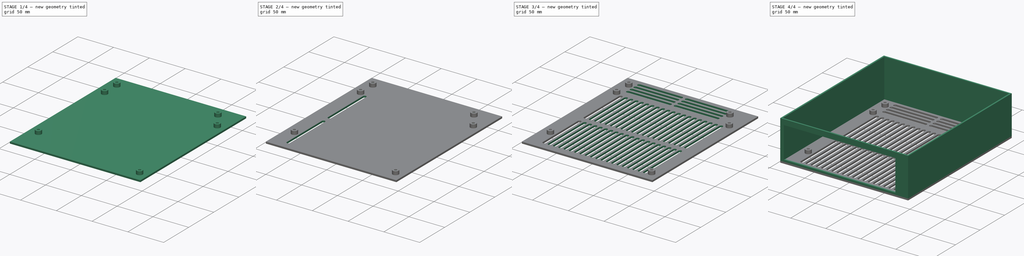
[diagram: build sequence overview — one tinted view per stage of 4, left to right]
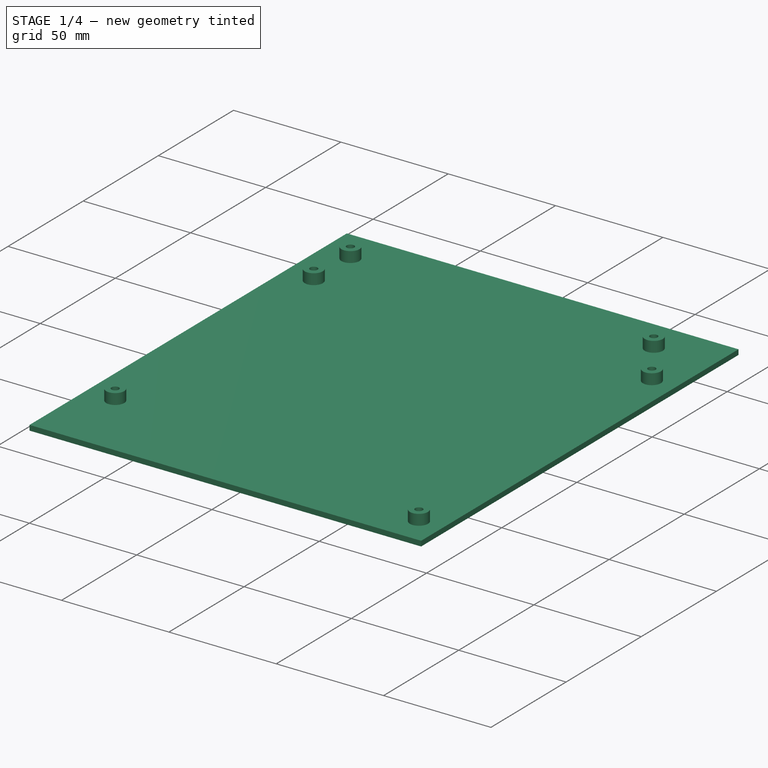
[diagram: stage 1 of 4 — iso view after this stage's code; geometry added in this stage tinted green]
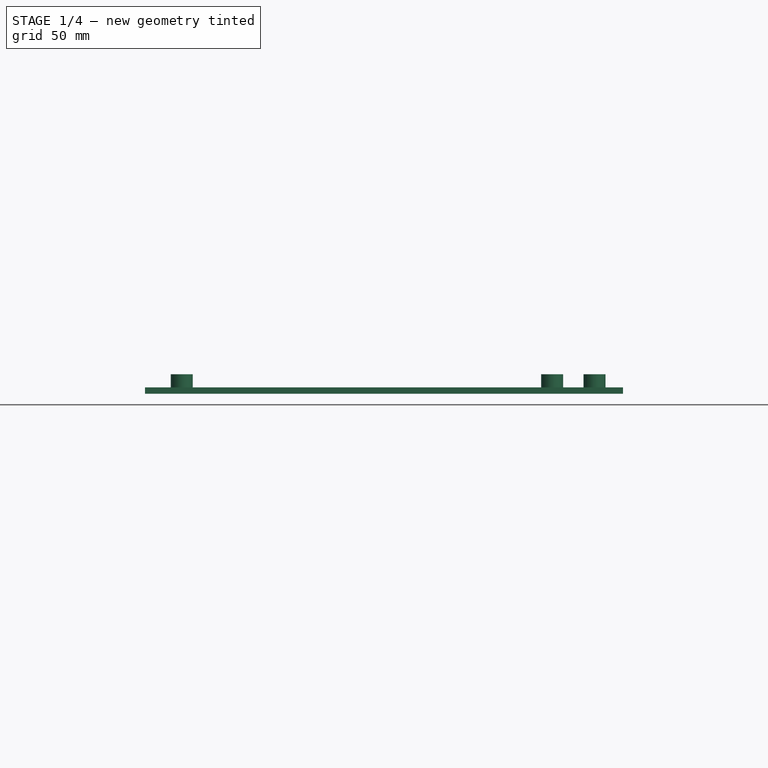
[diagram: stage 1 of 4 — front view after this stage's code; geometry added in this stage tinted green]
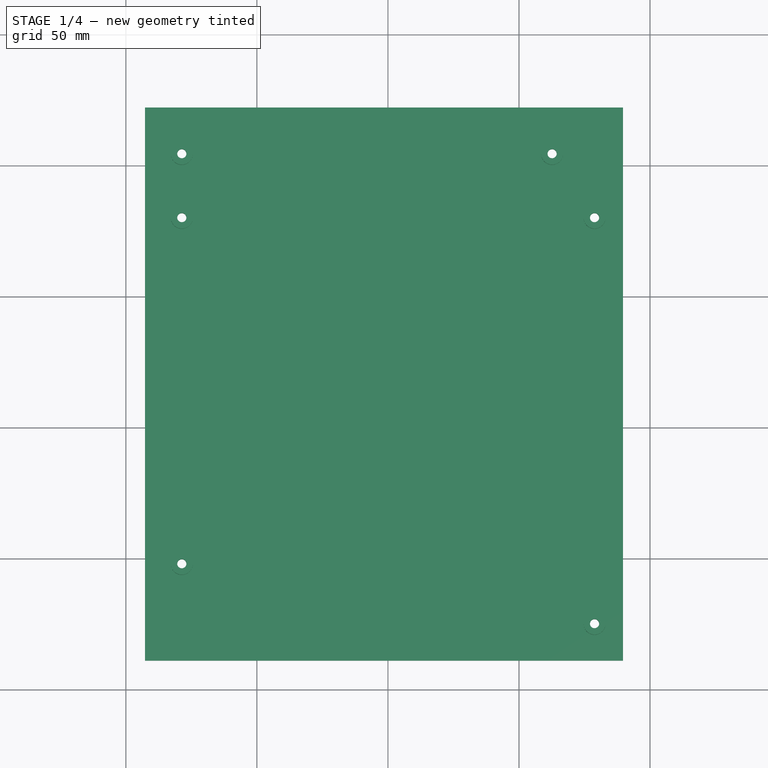
[diagram: stage 1 of 4 — top view after this stage's code; geometry added in this stage tinted green]
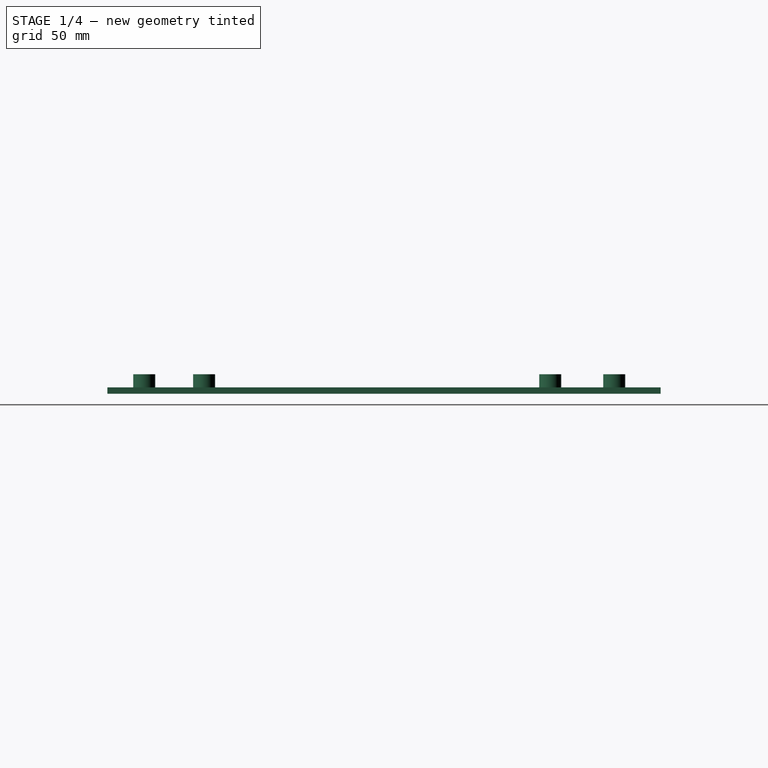
[diagram: stage 1 of 4 — right view after this stage's code; geometry added in this stage tinted green]
FCSTD DOCUMENT  (FreeCAD 0.18.3R)
Label: MiniItx_2
License: All rights reserved
LicenseURL: http://en.wikipedia.org/wiki/All_rights_reserved
objects: Sketcher::SketchObject×8, PartDesign::Pocket×4, PartDesign::Pad×3, PartDesign::LinearPattern×2, Spreadsheet::Sheet×1, PartDesign::Body×1, App::Part×1
note: 25 computed .brp shape members not serialized (recipe doc carries the construction recipe); baked Part::Feature solids carry a one-line shape summary decoded from their .brp

FEATURE [Sketcher::SketchObject] Sketch
  MapMode = 5
  Support = -> [XY_Plane001]
  expr: Constraints.ScrewRadius = Screws.M3Radius
  sketch-geometry (38):
    g0: LineSegment StartX=-85 StartY=85 StartZ=0 EndX=85 EndY=85 EndZ=0
    g1: LineSegment StartX=85 StartY=85 StartZ=0 EndX=85 EndY=-85 EndZ=0
    g2: LineSegment StartX=85 StartY=-85 StartZ=0 EndX=-85 EndY=-85 EndZ=0
    g3: LineSegment StartX=-85 StartY=-85 StartZ=0 EndX=-85 EndY=85 EndZ=0
    g4: LineSegment [constr] StartX=-85 StartY=0 StartZ=0 EndX=85 EndY=0 EndZ=0
    g5: LineSegment [constr] StartX=0 StartY=85 StartZ=0 EndX=0 EndY=-85 EndZ=0
    g6: LineSegment StartX=-78.65 StartY=80.1 StartZ=0 EndX=-78.65 EndY=-51.98 EndZ=0
    g7: Circle CenterX=-78.65 CenterY=80.1 CenterZ=0 NormalX=0 NormalY=0 NormalZ=1 AngleXU=0 Radius=1.75
    g8: Circle CenterX=-78.65 CenterY=-51.98 CenterZ=0 NormalX=0 NormalY=0 NormalZ=1 AngleXU=0 Radius=1.75
    g9: LineSegment StartX=78.83 StartY=80.1 StartZ=0 EndX=78.83 EndY=-74.84 EndZ=0
    g10: Circle CenterX=78.83 CenterY=-74.84 CenterZ=0 NormalX=0 NormalY=0 NormalZ=1 AngleXU=0 Radius=1.75
    g11: LineSegment StartX=-78.65 StartY=80.1 StartZ=0 EndX=78.83 EndY=80.1 EndZ=0
    g12: Circle CenterX=78.83 CenterY=80.1 CenterZ=0 NormalX=0 NormalY=0 NormalZ=1 AngleXU=0 Radius=1.75
    g13: LineSegment StartX=-92.7 StartY=122.2 StartZ=0 EndX=89.7 EndY=122.2 EndZ=0
    g14: LineSegment StartX=89.7 StartY=122.2 StartZ=0 EndX=89.7 EndY=-88.9 EndZ=0
    g15: LineSegment StartX=89.7 StartY=-88.9 StartZ=0 EndX=-92.7 EndY=-88.9 EndZ=0
    g16: LineSegment StartX=-92.7 StartY=-88.9 StartZ=0 EndX=-92.7 EndY=122.2 EndZ=0
    g17: LineSegment StartX=-85 StartY=-85 StartZ=0 EndX=-87.5 EndY=-85 EndZ=0
    g18: LineSegment StartX=-85 StartY=-86.7 StartZ=0 EndX=-85 EndY=-88.9 EndZ=0
    g19: LineSegment StartX=-85 StartY=117.5 StartZ=0 EndX=69 EndY=117.5 EndZ=0
    g20: LineSegment StartX=69 StartY=117.5 StartZ=0 EndX=69 EndY=87.5 EndZ=0
    g21: LineSegment StartX=69 StartY=87.5 StartZ=0 EndX=-85 EndY=87.5 EndZ=0
    g22: LineSegment StartX=-85 StartY=87.5 StartZ=0 EndX=-85 EndY=117.5 EndZ=0
    g23: LineSegment [constr] StartX=-85 StartY=104.5 StartZ=0 EndX=69 EndY=104.5 EndZ=0
    g24: LineSegment [constr] StartX=-8 StartY=117.5 StartZ=0 EndX=-8 EndY=87.5 EndZ=0
    g25: LineSegment [constr] StartX=-85 StartY=87.5 StartZ=0 EndX=-85 EndY=85 EndZ=0
    g26: LineSegment StartX=-85 StartY=117.5 StartZ=0 EndX=-85 EndY=120 EndZ=0
    g27: Circle CenterX=-78.65 CenterY=104.5 CenterZ=0 NormalX=0 NormalY=0 NormalZ=1 AngleXU=0 Radius=1.75
    g28: Circle CenterX=62.65 CenterY=104.5 CenterZ=0 NormalX=0 NormalY=0 NormalZ=1 AngleXU=0 Radius=1.75
    g29: GeomPoint X=0 Y=0 Z=0
    g30: LineSegment StartX=-85 StartY=-85 StartZ=0 EndX=-85 EndY=-86.7 EndZ=0
    g31: LineSegment StartX=-87.5 StartY=-85 StartZ=0 EndX=-87.5 EndY=-88.9 EndZ=0
    g32: LineSegment StartX=-85 StartY=120 StartZ=0 EndX=-85 EndY=122.2 EndZ=0
    g33: LineSegment StartX=-85 StartY=85 StartZ=0 EndX=-87.5 EndY=85 EndZ=0
    g34: LineSegment StartX=-87.5 StartY=85 StartZ=0 EndX=-90.5 EndY=85 EndZ=0
    g35: LineSegment StartX=-90.5 StartY=85 StartZ=0 EndX=-92.7 EndY=85 EndZ=0
    g36: LineSegment StartX=85 StartY=85 StartZ=0 EndX=87.5 EndY=85 EndZ=0
    g37: LineSegment StartX=87.5 StartY=85 StartZ=0 EndX=89.7 EndY=85 EndZ=0
  constraints (112):
    c: Coincident(g0,g1)
    c: Coincident(g1,g2)
    c: Coincident(g2,g3)
    c: Coincident(g3,g0)
    c: Horizontal(g0)
    c: Horizontal(g2)
    c: Vertical(g1)
    c: Vertical(g3)
    c: DistanceX(g0,g0) = 170  'BoardWidth'
    c: Equal(g0,g1)
    c: PointOnObject(g4,g3)
    c: PointOnObject(g4,g1)
    c: PointOnObject(g5,g0)
    c: PointOnObject(g5,g2)
    c: Symmetric(g0,g0,g5)
    c: Symmetric(g0,g2,g4)
    c: Vertical(g6)
    c: Coincident(g7,g6)
    c: Coincident(g8,g6)
    c: DistanceY(g2,g8) = 33.02  'FrontLeftScrewFromEdge'
    c: DistanceY(g8,g7) = 132.08  'FrontBackLeftScrewDistance'
    c: Vertical(g9)
    c: DistanceX(g8,g9) = 157.48  'LeftRightScrewDistance'
    c: DistanceY(g1,g9) = 10.16  'FrontRightScrewFromEdge'
    c: Equal(g7,g8)
    c: Radius(g7) = 1.75  'ScrewRadius'
    c: Coincident(g10,g9)
    c: Equal(g10,g8)
    c: Coincident(g11,g7)
    c: Coincident(g11,g9)
    c: Horizontal(g11)
    c: Coincident(g12,g9)
    c: Equal(g12,g10)
    c: DistanceX(g0,g7) = 6.35  'LeftScrewDistanceFromEdge'
    c: Coincident(g13,g14)
    c: Coincident(g14,g15)
    c: Coincident(g15,g16)
    c: Coincident(g16,g13)
    c: Horizontal(g13)
    c: Horizontal(g15)
    c: Vertical(g14)
    c: Vertical(g16)
    c: Coincident(g17,g2)
    c: Horizontal(g17)
    c: Vertical(g18)
    c: Coincident(g19,g20)
    c: Coincident(g20,g21)
    c: Coincident(g21,g22)
    c: Coincident(g22,g19)
    c: Horizontal(g19)
    c: Horizontal(g21)
    c: Vertical(g20)
    c: Vertical(g22)
    c: PointOnObject(g23,g22)
    c: PointOnObject(g23,g20)
    c: PointOnObject(g24,g19)
    c: PointOnObject(g24,g21)
    c: Symmetric(g19,g19,g24)
    c: DistanceX(g19,g19) = 154  'PSUWidth'
    c: DistanceY(g22,g22) = 30  'PSULength'
    c: Coincident(g25,g21)
    c: Vertical(g25)
    c: Coincident(g25,g0)
    c: Coincident(g26,g19)
    c: Vertical(g26)
    c: PointOnObject(g27,g23)
    c: Equal(g7,g27)
    c: Equal(g27,g28)
    c: PointOnObject(g27,g6)
    c: Symmetric(g27,g28,g24)
    c: DistanceX(g13,g13) = 182.4  'TotalWidth'
    c: DistanceY(g16,g16) = 211.1  'TotalLength'
    c: PointOnObject(g29,g5)
    c: PointOnObject(g29,g4)
    c: Coincident(g29,g-1)  '__ANCHOR__'
    c: Vertical(g30)
    c: DistanceY(g30,g30) = 1.7  'BackPlateTolerance'
    c: Horizontal(g23)
    c: DistanceY(g23,g19) = 13  'PSUScrewDistance'
    c: DistanceY(g14,g4) = 88.9  'FrontOffset'
    c: PointOnObject(g31,g15)
    c: Vertical(g31)
    c: PointOnObject(g18,g15)
    c: Coincident(g30,g18)
    c: Coincident(g30,g2)
    c: DistanceX(g31,g18) = 2.5
    c: DistanceX(g31,g5) = 87.5  'BackPlateCutoutDistance'
    c: DistanceY(g26,g26) = 2.5  'WallTolerance'
    c: Coincident(g32,g26)
    c: Vertical(g32)
    c: DistanceY(g32,g32) = 2.2  'WallThickness'
    c: PointOnObject(g32,g13)
    c: Coincident(g17,g31)
    c: Equal(g18,g32)
    c: Coincident(g3,g33)
    c: Horizontal(g33)
    c: Coincident(g33,g34)
    c: Horizontal(g34)
    c: Coincident(g34,g35)
    c: PointOnObject(g35,g16)
    c: Horizontal(g35)
    c: Equal(g35,g32)
    c: Equal(g33,g26)
    c: DistanceX(g34,g34) = 3
    c: Equal(g33,g25)
    c: Coincident(g0,g36)
    c: Horizontal(g36)
    c: Coincident(g36,g37)
    c: PointOnObject(g37,g14)
    c: Horizontal(g37)
    c: Equal(g32,g37)
    c: Equal(g36,g26)
FEATURE [Spreadsheet::Sheet] Spreadsheet001  label="Screws"
  cells = B2=M3Radius; C2(M3Radius)==1.75mm; B3=M3HeadRadius; C3(M3HeadRadius)==3mm; B4=M3HeadHeight; C4(M3HeadHeight)==3.4mm; B5=M3NutRadius; C5(M3NutRadius)==3.4mm; B6=M3NutHeight; C6(M3NutHeight)==2.6mm; B7=M3NutDuctWidth; C7(M3NutDuctWidth)==6mm; B8=M4Radius; C8(M4Radius)==2.2mm; B9=M4HeadRadius; C9(M4HeadRadius)==3.7mm; B10=M4HeadHeight; C10(M4HeadHeight)==4mm; B11=M4NutRadius; C11(M4NutRadius)==4.2mm; B12=M4NutHeight; C12(M4NutHeight)==3.3mm; B13=M5Radius; C13(M5Radius)==2.66mm; B14=M5HeadRadius; C14(M5HeadRadius)==4.5mm; B15=M5HeadHeight; C15(M5HeadHeight)==5mm; B16=M5NutRadius; C16(M5NutRadius)==4.75mm; B17=M5NutHeight; C17(M5NutHeight)==4mm
FEATURE [Sketcher::SketchObject] Sketch008  label="BackPlate"
  AttachmentOffset = pos=(0,5.1,88.9) rot=(0,0,1;0rad)
  MapMode = 5
  Placement = pos=(0,-88.9,5.1) rot=(1,0,0;1.5708rad)
  Support = -> [XZ_Plane001]
  expr: Constraints[11] = Sketch.Constraints.BackPlateCutoutDistance
  expr: AttachmentOffset.Base.y = PcbHolders.AttachmentOffset.Base.z + PcbHolders_.Length - 2.3mm
  expr: AttachmentOffset.Base.z = Sketch.Constraints.FrontOffset
  sketch-geometry (4):
    g0: LineSegment StartX=-87.5 StartY=44.7 StartZ=0 EndX=71.5 EndY=44.7 EndZ=0
    g1: LineSegment StartX=71.5 StartY=44.7 StartZ=0 EndX=71.5 EndY=0 EndZ=0
    g2: LineSegment StartX=71.5 StartY=0 StartZ=0 EndX=-87.5 EndY=0 EndZ=0
    g3: LineSegment StartX=-87.5 StartY=0 StartZ=0 EndX=-87.5 EndY=44.7 EndZ=0
  constraints (12):
    c: Coincident(g0,g1)
    c: Coincident(g1,g2)
    c: Coincident(g2,g3)
    c: Coincident(g3,g0)
    c: Horizontal(g0)
    c: Horizontal(g2)
    c: Vertical(g1)
    c: Vertical(g3)
    c: DistanceX(g0,g0) = 159
    c: DistanceY(g3,g3) = 44.7  'BackShieldHeight'
    c: PointOnObject(g-1,g2)
    c: DistanceX(g2,g-1) = 87.5
FEATURE [Sketcher::SketchObject] Sketch009  label="Base"
  ExternalGeometry = -> [Sketch]
  MapMode = 5
  Support = -> [XY_Plane001]
  sketch-geometry (10):
    g0: LineSegment StartX=-92.7 StartY=122.2 StartZ=0 EndX=89.7 EndY=122.2 EndZ=0
    g1: LineSegment StartX=89.7 StartY=122.2 StartZ=0 EndX=89.7 EndY=-88.9 EndZ=0
    g2: LineSegment StartX=89.7 StartY=-88.9 StartZ=0 EndX=-92.7 EndY=-88.9 EndZ=0
    g3: LineSegment StartX=-92.7 StartY=-88.9 StartZ=0 EndX=-92.7 EndY=122.2 EndZ=0
    g4: Circle CenterX=-78.65 CenterY=104.5 CenterZ=0 NormalX=0 NormalY=0 NormalZ=1 AngleXU=0 Radius=1.75
    g5: Circle CenterX=62.65 CenterY=104.5 CenterZ=0 NormalX=0 NormalY=0 NormalZ=1 AngleXU=0 Radius=1.75
    g6: Circle CenterX=78.83 CenterY=80.1 CenterZ=0 NormalX=0 NormalY=0 NormalZ=1 AngleXU=0 Radius=1.75
    g7: Circle CenterX=-78.65 CenterY=80.1 CenterZ=0 NormalX=0 NormalY=0 NormalZ=1 AngleXU=0 Radius=1.75
    g8: Circle CenterX=-78.65 CenterY=-51.98 CenterZ=0 NormalX=0 NormalY=0 NormalZ=1 AngleXU=0 Radius=1.75
    g9: Circle CenterX=78.83 CenterY=-74.84 CenterZ=0 NormalX=0 NormalY=0 NormalZ=1 AngleXU=0 Radius=1.75
  constraints (22):
    c: Coincident(g0,g1)
    c: Coincident(g1,g2)
    c: Coincident(g2,g3)
    c: Coincident(g3,g0)
    c: Horizontal(g0)
    c: Horizontal(g2)
    c: Vertical(g1)
    c: Vertical(g3)
    c: Coincident(g0,g-3)
    c: Coincident(g1,g-4)
    c: Coincident(g4,g-9)
    c: Coincident(g5,g-10)
    c: Coincident(g6,g-7)
    c: Coincident(g7,g-8)
    c: Coincident(g8,g-5)
    c: Coincident(g9,g-6)
    c: Equal(g4,g5)
    c: Equal(g5,g6)
    c: Equal(g6,g7)
    c: Equal(g7,g8)
    c: Equal(g8,g9)
    c: Equal(g4,g-9)
FEATURE [PartDesign::Pad] Pad  label="Base_"
  Length = 2.4
  Length2 = 100
  Profile = -> Sketch009
  Type = 0
FEATURE [Sketcher::SketchObject] Sketch010  label="PcbHolders"
  AttachmentOffset = pos=(0,0,2.4) rot=(0,0,1;0rad)
  ExternalGeometry = -> [Sketch]
  MapMode = 5
  Placement = pos=(0,0,2.4) rot=(0,0,1;0rad)
  Support = -> [XY_Plane001]
  expr: Constraints[23] = Screws.M3NutRadius + 0.8mm
  expr: AttachmentOffset.Base.z = Base.Placement.Base.z + Base_.Length
  sketch-geometry (12):
    g0: Circle CenterX=-78.65 CenterY=104.5 CenterZ=0 NormalX=0 NormalY=0 NormalZ=1 AngleXU=0 Radius=1.75
    g1: Circle CenterX=-78.65 CenterY=104.5 CenterZ=0 NormalX=0 NormalY=0 NormalZ=1 AngleXU=0 Radius=4.2
    g2: Circle CenterX=-78.65 CenterY=80.1 CenterZ=0 NormalX=0 NormalY=0 NormalZ=1 AngleXU=0 Radius=1.75
    g3: Circle CenterX=-78.65 CenterY=80.1 CenterZ=0 NormalX=0 NormalY=0 NormalZ=1 AngleXU=0 Radius=4.2
    g4: Circle CenterX=62.65 CenterY=104.5 CenterZ=0 NormalX=0 NormalY=0 NormalZ=1 AngleXU=0 Radius=1.75
    g5: Circle CenterX=62.65 CenterY=104.5 CenterZ=0 NormalX=0 NormalY=0 NormalZ=1 AngleXU=0 Radius=4.2
    g6: Circle CenterX=78.83 CenterY=80.1 CenterZ=0 NormalX=0 NormalY=0 NormalZ=1 AngleXU=0 Radius=1.75
    g7: Circle CenterX=78.83 CenterY=80.1 CenterZ=0 NormalX=0 NormalY=0 NormalZ=1 AngleXU=0 Radius=4.2
    g8: Circle CenterX=78.83 CenterY=-74.84 CenterZ=0 NormalX=0 NormalY=0 NormalZ=1 AngleXU=0 Radius=1.75
    g9: Circle CenterX=78.83 CenterY=-74.84 CenterZ=0 NormalX=0 NormalY=0 NormalZ=1 AngleXU=0 Radius=4.2
    g10: Circle CenterX=-78.65 CenterY=-51.98 CenterZ=0 NormalX=0 NormalY=0 NormalZ=1 AngleXU=0 Radius=1.75
    g11: Circle CenterX=-78.65 CenterY=-51.98 CenterZ=0 NormalX=0 NormalY=0 NormalZ=1 AngleXU=0 Radius=4.2
  constraints (24):
    c: Coincident(g0,g-3)
    c: Coincident(g1,g0)
    c: Coincident(g2,g-8)
    c: Coincident(g3,g2)
    c: Coincident(g4,g-4)
    c: Coincident(g5,g4)
    c: Coincident(g6,g-5)
    c: Coincident(g7,g6)
    c: Coincident(g8,g-6)
    c: Coincident(g9,g8)
    c: Coincident(g10,g-7)
    c: Coincident(g11,g10)
    c: Equal(g10,g8)
    c: Equal(g8,g6)
    c: Equal(g6,g4)
    c: Equal(g4,g0)
    c: Equal(g0,g2)
    c: Equal(g0,g-3)
    c: Equal(g1,g5)
    c: Equal(g5,g3)
    c: Equal(g3,g7)
    c: Equal(g7,g9)
    c: Equal(g9,g11)
    c: Radius(g1) = 4.2
FEATURE [PartDesign::Pad] Pad001  label="PcbHolders_"
  BaseFeature = -> Pad
  Length = 5
  Length2 = 100
  Profile = -> Sketch010
  Type = 0
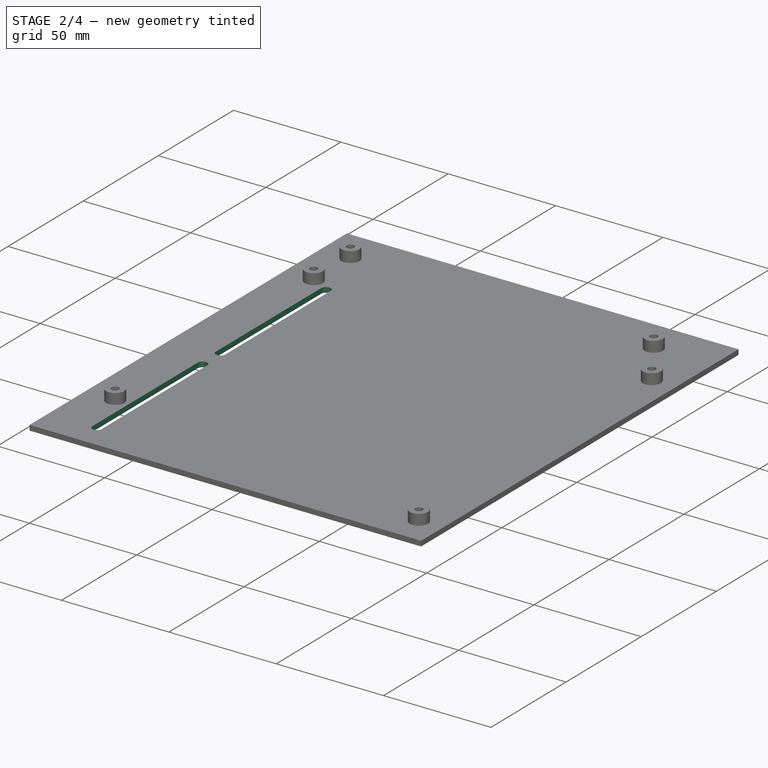
[diagram: stage 2 of 4 — iso view after this stage's code; geometry added in this stage tinted green]
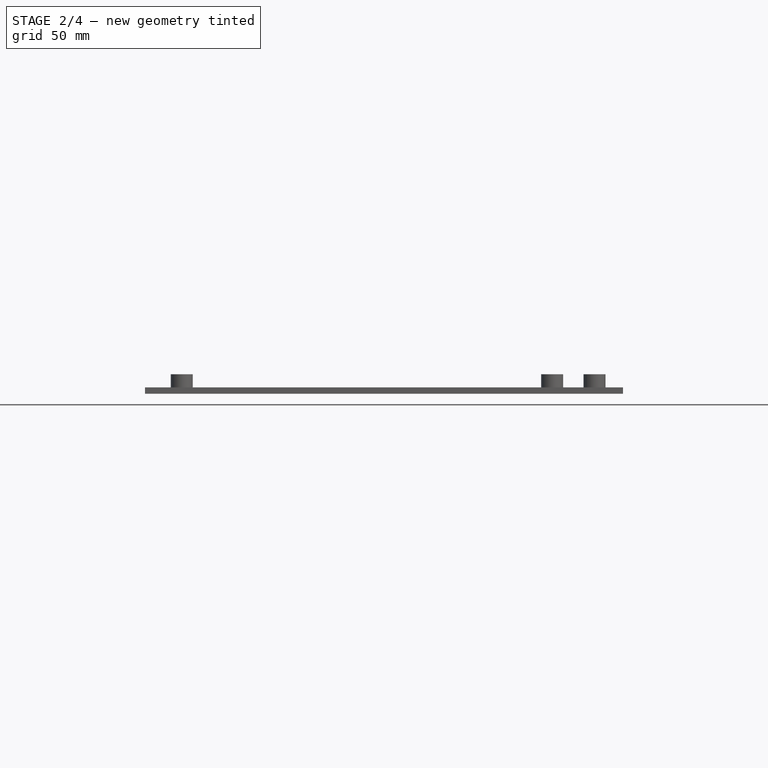
[diagram: stage 2 of 4 — front view after this stage's code; geometry added in this stage tinted green]
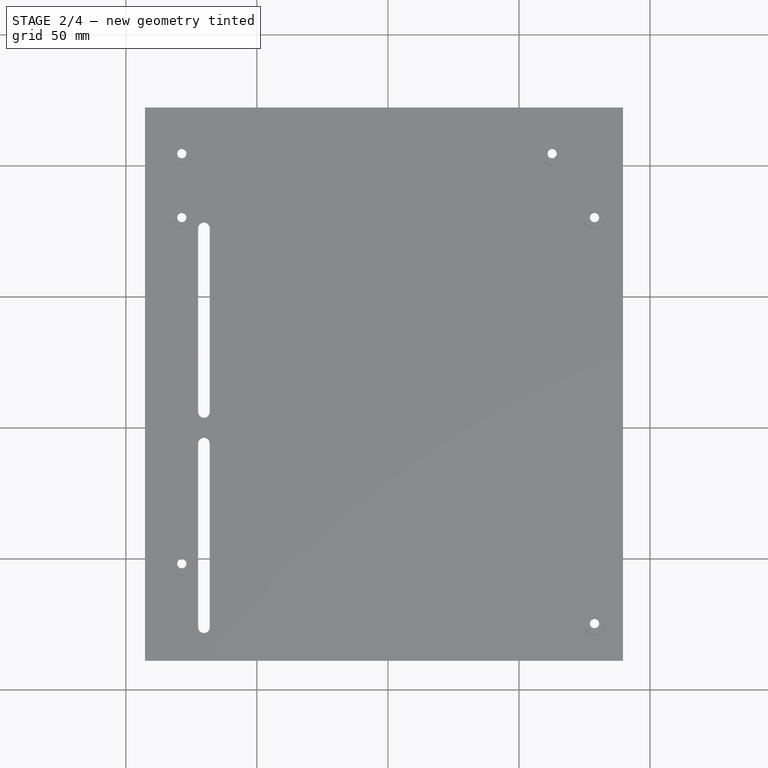
[diagram: stage 2 of 4 — top view after this stage's code; geometry added in this stage tinted green]
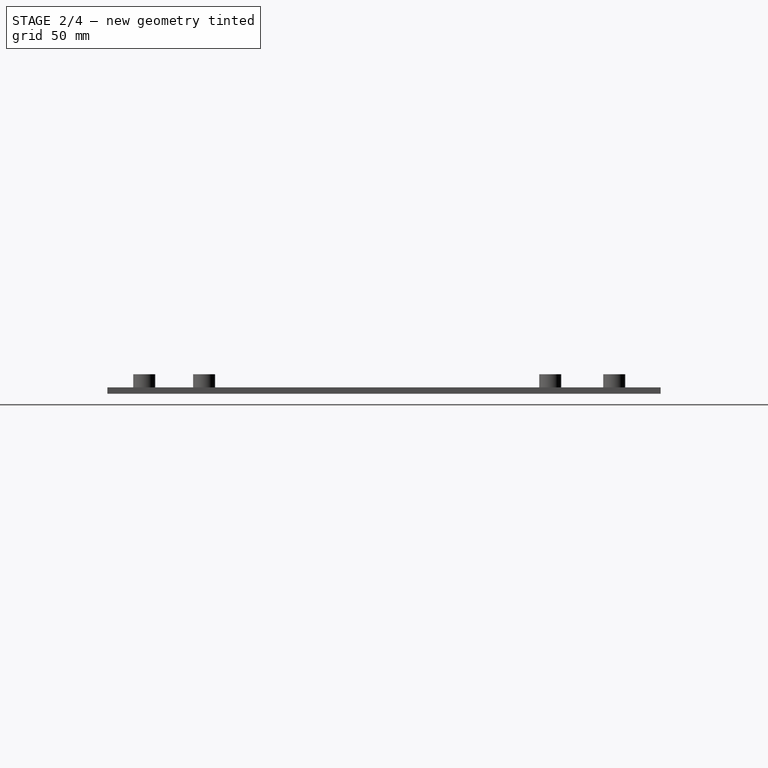
[diagram: stage 2 of 4 — right view after this stage's code; geometry added in this stage tinted green]
FEATURE [Sketcher::SketchObject] Sketch011  label="NutHoles"
  AttachmentOffset = pos=(0,0,6) rot=(0,0,1;0rad)
  ExternalGeometry = -> [Sketch]
  MapMode = 5
  Placement = pos=(0,0,6) rot=(0,0,1;0rad)
  Support = -> [XY_Plane001]
  expr: Constraints[119] = Screws.M3NutRadius
  expr: AttachmentOffset.Base.z = PcbHolders.AttachmentOffset.Base.z + PcbHolders_.Length - 1.4mm
  sketch-geometry (42):
    g0: LineSegment StartX=-75.7055 StartY=102.8 StartZ=0 EndX=-75.7055 EndY=106.2 EndZ=0
    g1: LineSegment StartX=-75.7055 StartY=106.2 StartZ=0 EndX=-78.65 EndY=107.9 EndZ=0
    g2: LineSegment StartX=-78.65 StartY=107.9 StartZ=0 EndX=-81.5945 EndY=106.2 EndZ=0
    g3: LineSegment StartX=-81.5945 StartY=106.2 StartZ=0 EndX=-81.5945 EndY=102.8 EndZ=0
    g4: LineSegment StartX=-81.5945 StartY=102.8 StartZ=0 EndX=-78.65 EndY=101.1 EndZ=0
    g5: LineSegment StartX=-78.65 StartY=101.1 StartZ=0 EndX=-75.7055 EndY=102.8 EndZ=0
    g6: Circle [constr] CenterX=-78.65 CenterY=104.5 CenterZ=0 NormalX=0 NormalY=0 NormalZ=1 AngleXU=0 Radius=3.4
    g7: LineSegment StartX=65.5945 StartY=102.8 StartZ=0 EndX=65.5945 EndY=106.2 EndZ=0
    g8: LineSegment StartX=65.5945 StartY=106.2 StartZ=0 EndX=62.65 EndY=107.9 EndZ=0
    g9: LineSegment StartX=62.65 StartY=107.9 StartZ=0 EndX=59.7055 EndY=106.2 EndZ=0
    g10: LineSegment StartX=59.7055 StartY=106.2 StartZ=0 EndX=59.7055 EndY=102.8 EndZ=0
    g11: LineSegment StartX=59.7055 StartY=102.8 StartZ=0 EndX=62.65 EndY=101.1 EndZ=0
    g12: LineSegment StartX=62.65 StartY=101.1 StartZ=0 EndX=65.5945 EndY=102.8 EndZ=0
    g13: Circle [constr] CenterX=62.65 CenterY=104.5 CenterZ=0 NormalX=0 NormalY=0 NormalZ=1 AngleXU=0 Radius=3.4
    g14: LineSegment StartX=81.7745 StartY=78.4 StartZ=0 EndX=81.7745 EndY=81.8 EndZ=0
    g15: LineSegment StartX=81.7745 StartY=81.8 StartZ=0 EndX=78.83 EndY=83.5 EndZ=0
    g16: LineSegment StartX=78.83 StartY=83.5 StartZ=0 EndX=75.8855 EndY=81.8 EndZ=0
    g17: LineSegment StartX=75.8855 StartY=81.8 StartZ=0 EndX=75.8855 EndY=78.4 EndZ=0
    g18: LineSegment StartX=75.8855 StartY=78.4 StartZ=0 EndX=78.83 EndY=76.7 EndZ=0
    g19: LineSegment StartX=78.83 StartY=76.7 StartZ=0 EndX=81.7745 EndY=78.4 EndZ=0
    g20: Circle [constr] CenterX=78.83 CenterY=80.1 CenterZ=0 NormalX=0 NormalY=0 NormalZ=1 AngleXU=0 Radius=3.4
    g21: LineSegment StartX=81.7745 StartY=-76.54 StartZ=0 EndX=81.7745 EndY=-73.14 EndZ=0
    g22: LineSegment StartX=81.7745 StartY=-73.14 StartZ=0 EndX=78.83 EndY=-71.44 EndZ=0
    g23: LineSegment StartX=78.83 StartY=-71.44 StartZ=0 EndX=75.8855 EndY=-73.14 EndZ=0
    g24: LineSegment StartX=75.8855 StartY=-73.14 StartZ=0 EndX=75.8855 EndY=-76.54 EndZ=0
    g25: LineSegment StartX=75.8855 StartY=-76.54 StartZ=0 EndX=78.83 EndY=-78.24 EndZ=0
    g26: LineSegment StartX=78.83 StartY=-78.24 StartZ=0 EndX=81.7745 EndY=-76.54 EndZ=0
    g27: Circle [constr] CenterX=78.83 CenterY=-74.84 CenterZ=0 NormalX=0 NormalY=0 NormalZ=1 AngleXU=0 Radius=3.4
    g28: LineSegment StartX=-75.7055 StartY=-53.68 StartZ=0 EndX=-75.7055 EndY=-50.28 EndZ=0
    g29: LineSegment StartX=-75.7055 StartY=-50.28 StartZ=0 EndX=-78.65 EndY=-48.58 EndZ=0
    g30: LineSegment StartX=-78.65 StartY=-48.58 StartZ=0 EndX=-81.5945 EndY=-50.28 EndZ=0
    g31: LineSegment StartX=-81.5945 StartY=-50.28 StartZ=0 EndX=-81.5945 EndY=-53.68 EndZ=0
    g32: LineSegment StartX=-81.5945 StartY=-53.68 StartZ=0 EndX=-78.65 EndY=-55.38 EndZ=0
    g33: LineSegment StartX=-78.65 StartY=-55.38 StartZ=0 EndX=-75.7055 EndY=-53.68 EndZ=0
    g34: Circle [constr] CenterX=-78.65 CenterY=-51.98 CenterZ=0 NormalX=0 NormalY=0 NormalZ=1 AngleXU=0 Radius=3.4
    g35: LineSegment StartX=-75.7055 StartY=78.4 StartZ=0 EndX=-75.7055 EndY=81.8 EndZ=0
    g36: LineSegment StartX=-75.7055 StartY=81.8 StartZ=0 EndX=-78.65 EndY=83.5 EndZ=0
    g37: LineSegment StartX=-78.65 StartY=83.5 StartZ=0 EndX=-81.5945 EndY=81.8 EndZ=0
    g38: LineSegment StartX=-81.5945 StartY=81.8 StartZ=0 EndX=-81.5945 EndY=78.4 EndZ=0
    g39: LineSegment StartX=-81.5945 StartY=78.4 StartZ=0 EndX=-78.65 EndY=76.7 EndZ=0
    g40: LineSegment StartX=-78.65 StartY=76.7 StartZ=0 EndX=-75.7055 EndY=78.4 EndZ=0
    g41: Circle [constr] CenterX=-78.65 CenterY=80.1 CenterZ=0 NormalX=0 NormalY=0 NormalZ=1 AngleXU=0 Radius=3.4
  constraints (96):
    c: Coincident(g0,g1)
    c: Coincident(g1,g2)
    c: Coincident(g2,g3)
    c: Coincident(g3,g4)
    c: Coincident(g4,g5)
    c: Coincident(g5,g0)
    c: Equal(g0, g1-g5) x5
    c: PointOnObject(g0,g6)
    c: PointOnObject(g1,g6)
    c: PointOnObject(g2,g6)
    c: PointOnObject(g3,g6)
    c: PointOnObject(g4,g6)
    c: PointOnObject(g5,g6)
    c: Coincident(g6,g-3)
    c: Coincident(g7,g8)
    c: Coincident(g8,g9)
    c: Coincident(g9,g10)
    c: Coincident(g10,g11)
    c: Coincident(g11,g12)
    c: Coincident(g12,g7)
    c: Equal(g7, g8-g12) x5
    c: PointOnObject(g7,g13)
    c: PointOnObject(g8,g13)
    c: PointOnObject(g9,g13)
    c: PointOnObject(g10,g13)
    c: PointOnObject(g11,g13)
    c: PointOnObject(g12,g13)
    c: Coincident(g13,g-4)
    c: Coincident(g14,g15)
    c: Coincident(g15,g16)
    c: Coincident(g16,g17)
    c: Coincident(g17,g18)
    c: Coincident(g18,g19)
    c: Coincident(g19,g14)
    c: Equal(g14, g15-g19) x5
    c: PointOnObject(g14,g20)
    c: PointOnObject(g15,g20)
    c: PointOnObject(g16,g20)
    c: PointOnObject(g17,g20)
    c: PointOnObject(g18,g20)
    c: PointOnObject(g19,g20)
    c: Coincident(g20,g-5)
    c: Coincident(g21,g22)
    c: Coincident(g22,g23)
    c: Coincident(g23,g24)
    c: Coincident(g24,g25)
    c: Coincident(g25,g26)
    c: Coincident(g26,g21)
    c: Equal(g21, g22-g26) x5
    c: PointOnObject(g21,g27)
    c: PointOnObject(g22,g27)
    c: PointOnObject(g23,g27)
    c: PointOnObject(g24,g27)
    c: PointOnObject(g25,g27)
    c: PointOnObject(g26,g27)
    c: Coincident(g27,g-6)
    c: Coincident(g28,g29)
    c: Coincident(g29,g30)
    c: Coincident(g30,g31)
    c: Coincident(g31,g32)
    c: Coincident(g32,g33)
    c: Coincident(g33,g28)
    c: Equal(g28, g29-g33) x5
    c: PointOnObject(g28,g34)
    c: PointOnObject(g29,g34)
    c: PointOnObject(g30,g34)
    c: PointOnObject(g31,g34)
    c: PointOnObject(g32,g34)
    c: PointOnObject(g33,g34)
    c: Coincident(g34,g-7)
    c: Coincident(g35,g36)
    c: Coincident(g36,g37)
    c: Coincident(g37,g38)
    c: Coincident(g38,g39)
    c: Coincident(g39,g40)
    c: Coincident(g40,g35)
    c: Equal(g35, g36-g40) x5
    c: PointOnObject(g35,g41)
    c: PointOnObject(g36,g41)
    c: PointOnObject(g37,g41)
    c: PointOnObject(g38,g41)
    c: PointOnObject(g39,g41)
    c: PointOnObject(g40,g41)
    c: Coincident(g41,g-8)
    c: Vertical(g0)
    c: Vertical(g35)
    c: Vertical(g7)
    c: Vertical(g14)
    c: Vertical(g21)
    c: Vertical(g28)
    c: Equal(g6,g41)
    c: Equal(g41,g13)
    c: Equal(g13,g20)
    c: Equal(g20,g27)
    c: Equal(g27,g34)
    c: Radius(g6) = 3.4
FEATURE [PartDesign::Pocket] Pocket  label="NutHoles_"
  BaseFeature = -> Pad001
  Length = 5
  Length2 = 100
  Profile = -> Sketch011
  Type = 1
FEATURE [Sketcher::SketchObject] Sketch012  label="MoBoBreathe"
  ExternalGeometry = -> [Sketch]
  MapMode = 5
  Support = -> [XY_Plane001]
  expr: Constraints.BreathingAreaWidth = 7.4mm * 19
  sketch-geometry (12):
    g0: LineSegment [constr] StartX=-78.65 StartY=78.35 StartZ=0 EndX=78.83 EndY=78.35 EndZ=0
    g1: LineSegment [constr] StartX=-78.65 StartY=76.15 StartZ=0 EndX=-70.21 EndY=76.15 EndZ=0
    g2: LineSegment [constr] StartX=-70.21 StartY=76.15 StartZ=0 EndX=70.39 EndY=76.15 EndZ=0
    g3: LineSegment [constr] StartX=70.39 StartY=76.15 StartZ=0 EndX=78.83 EndY=76.15 EndZ=0
    g4: ArcOfCircle CenterX=-70.21 CenterY=76.15 CenterZ=0 NormalX=0 NormalY=0 NormalZ=1 AngleXU=0 Radius=2.2 StartAngle=1.4e-15 EndAngle=3.14159
    g5: ArcOfCircle CenterX=-70.21 CenterY=6 CenterZ=0 NormalX=0 NormalY=0 NormalZ=1 AngleXU=0 Radius=2.2 StartAngle=3.14159 EndAngle=6.28319
    g6: LineSegment StartX=-72.41 StartY=76.15 StartZ=0 EndX=-72.41 EndY=6 EndZ=0
    g7: LineSegment StartX=-68.01 StartY=76.15 StartZ=0 EndX=-68.01 EndY=6 EndZ=0
    g8: ArcOfCircle CenterX=-70.21 CenterY=-6 CenterZ=0 NormalX=0 NormalY=0 NormalZ=1 AngleXU=0 Radius=2.2 StartAngle=-1.42e-14 EndAngle=3.14159
    g9: ArcOfCircle CenterX=-70.21 CenterY=-76.15 CenterZ=0 NormalX=0 NormalY=0 NormalZ=1 AngleXU=0 Radius=2.2 StartAngle=3.14159 EndAngle=6.28319
    g10: LineSegment StartX=-72.41 StartY=-6 StartZ=0 EndX=-72.41 EndY=-76.15 EndZ=0
    g11: LineSegment StartX=-68.01 StartY=-6 StartZ=0 EndX=-68.01 EndY=-76.15 EndZ=0
  constraints (34):
    c: PointOnObject(g0,g-5)
    c: PointOnObject(g0,g-6)
    c: Horizontal(g0)
    c: Tangent(g0,g-3)
    c: PointOnObject(g1,g-5)
    c: Horizontal(g1)
    c: Coincident(g1,g2)
    c: Horizontal(g2)
    c: Coincident(g2,g3)
    c: PointOnObject(g3,g-6)
    c: Horizontal(g3)
    c: Equal(g1,g3)
    c: DistanceX(g2,g2) = 140.6  'BreathingAreaWidth'
    c: Tangent(g6,g5) = -1.5708
    c: Tangent(g7,g5) = 1.5708
    c: Vertical(g6)
    c: Equal(g4,g5)
    c: Coincident(g4,g1)
    c: Radius(g4) = 2.2
    c: PointOnObject(g4,g1)
    c: PointOnObject(g4,g2)
    c: Tangent(g4,g0)
    c: Coincident(g6,g4)
    c: Coincident(g7,g4)
    c: Tangent(g8,g11) = 1.5708
    c: Tangent(g8,g10) = -1.5708
    c: Tangent(g10,g9) = -1.5708
    c: Tangent(g11,g9) = 1.5708
    c: Vertical(g10)
    c: Equal(g8,g9)
    c: Equal(g8,g5)
    c: Symmetric(g8,g5,g-1)
    c: Equal(g10,g6)
    c: DistanceY(g8,g5) = 12
FEATURE [PartDesign::Pocket] Pocket001  label="MoBoBreathe_"
  BaseFeature = -> Pocket
  Length = 5
  Length2 = 100
  Profile = -> Sketch012
  Reversed = true
  Type = 1
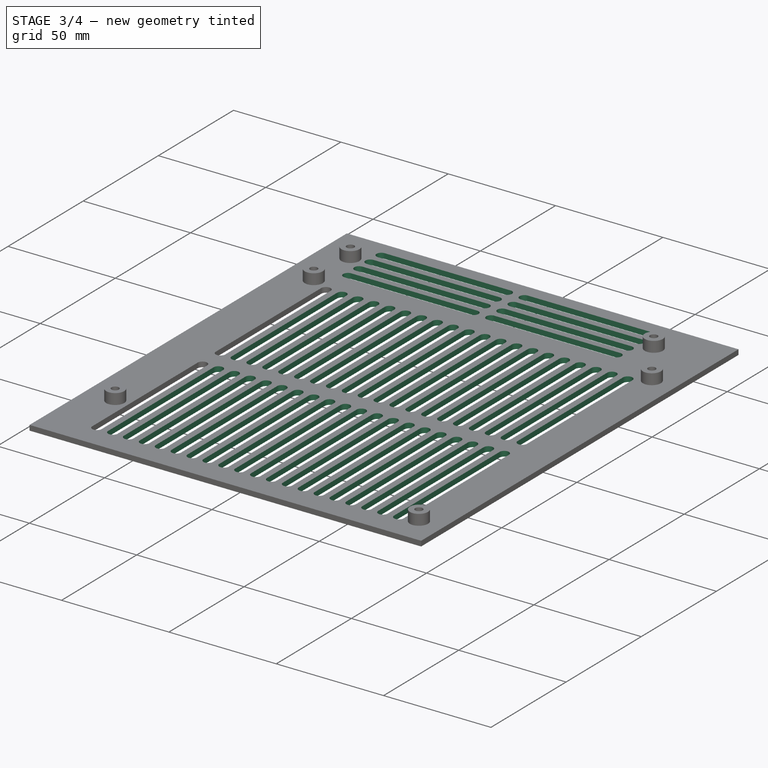
[diagram: stage 3 of 4 — iso view after this stage's code; geometry added in this stage tinted green]
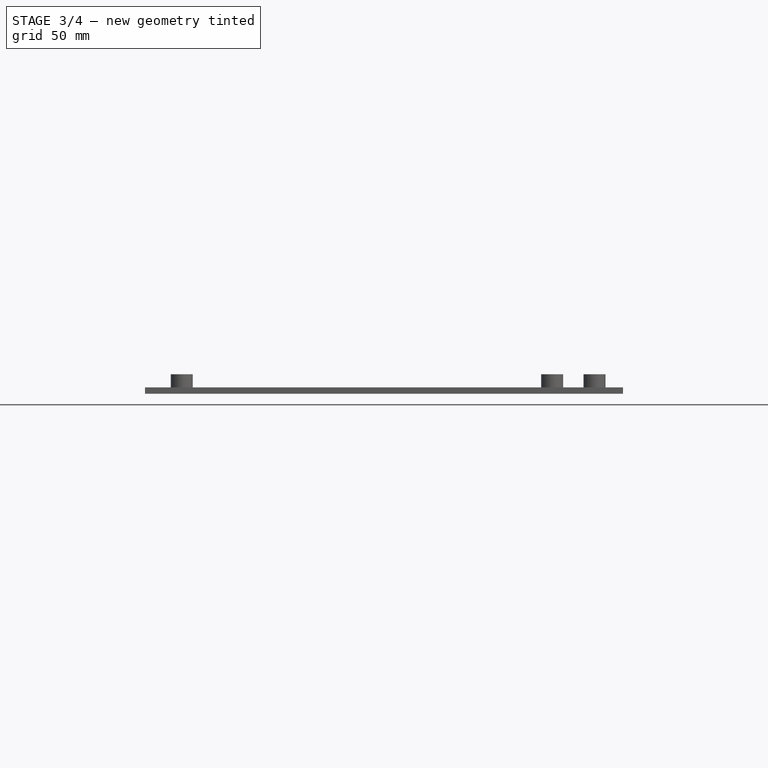
[diagram: stage 3 of 4 — front view after this stage's code; geometry added in this stage tinted green]
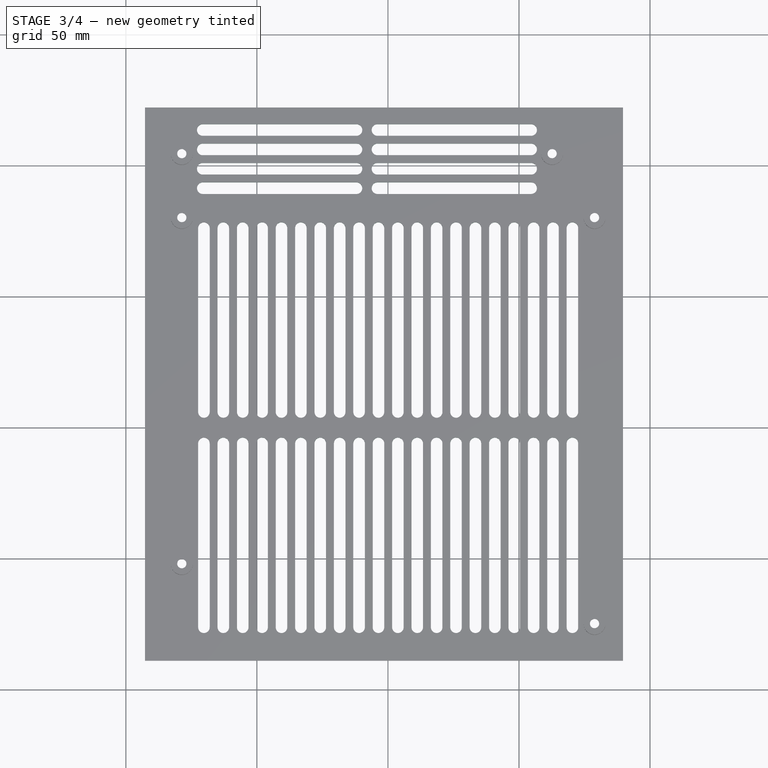
[diagram: stage 3 of 4 — top view after this stage's code; geometry added in this stage tinted green]
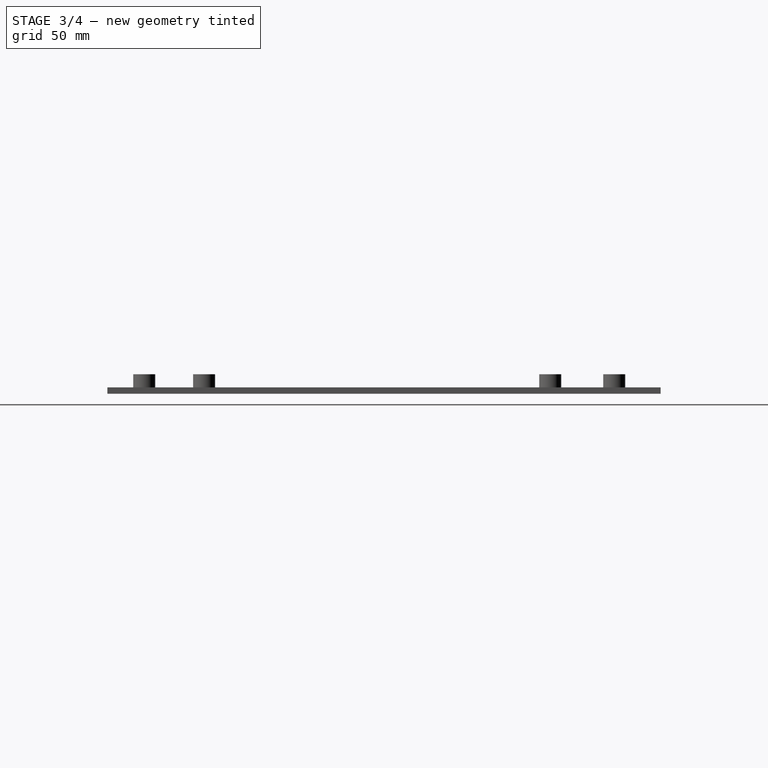
[diagram: stage 3 of 4 — right view after this stage's code; geometry added in this stage tinted green]
FEATURE [PartDesign::LinearPattern] LinearPattern
  BaseFeature = -> Pocket001
  Direction = -> Sketch012 [H_Axis]
  Length = 140.6
  Occurrences = 20
  Originals = -> [Pocket001]
  expr: Length = Sketch012.Constraints.BreathingAreaWidth
FEATURE [Sketcher::SketchObject] Sketch013  label="PSUBreathe"
  ExternalGeometry = -> [Sketch]
  MapMode = 5
  Support = -> [XY_Plane001]
  sketch-geometry (11):
    g0: LineSegment [constr] StartX=-85 StartY=102.5 StartZ=0 EndX=69 EndY=102.5 EndZ=0
    g1: LineSegment [constr] StartX=-70.65 StartY=113.6 StartZ=0 EndX=-70.65 EndY=91.4 EndZ=0
    g2: ArcOfCircle CenterX=-70.65 CenterY=91.4 CenterZ=0 NormalX=0 NormalY=0 NormalZ=1 AngleXU=0 Radius=2.2 StartAngle=1.5708 EndAngle=4.71239
    g3: ArcOfCircle CenterX=-12 CenterY=91.4 CenterZ=0 NormalX=0 NormalY=0 NormalZ=1 AngleXU=0 Radius=2.2 StartAngle=4.71239 EndAngle=7.85398
    g4: LineSegment StartX=-70.65 StartY=89.2 StartZ=0 EndX=-12 EndY=89.2 EndZ=0
    g5: LineSegment StartX=-70.65 StartY=93.6 StartZ=0 EndX=-12 EndY=93.6 EndZ=0
    g6: ArcOfCircle CenterX=-4 CenterY=91.4 CenterZ=0 NormalX=0 NormalY=0 NormalZ=1 AngleXU=0 Radius=2.2 StartAngle=1.5708 EndAngle=4.71239
    g7: ArcOfCircle CenterX=54.65 CenterY=91.4 CenterZ=0 NormalX=0 NormalY=0 NormalZ=1 AngleXU=0 Radius=2.2 StartAngle=4.71239 EndAngle=7.85398
    g8: LineSegment StartX=-4 StartY=89.2 StartZ=0 EndX=54.65 EndY=89.2 EndZ=0
    g9: LineSegment StartX=-4 StartY=93.6 StartZ=0 EndX=54.65 EndY=93.6 EndZ=0
    g10: LineSegment [constr] StartX=-8 StartY=117.5 StartZ=0 EndX=-8 EndY=87.5 EndZ=0
  constraints (27):
    c: Symmetric(g1,g1,g0)
    c: DistanceY(g1,g1) = 22.2  'BreathingAreaLength'
    c: Tangent(g2,g5) = 1.5708
    c: Tangent(g2,g4) = -1.5708
    c: Tangent(g4,g3) = -1.5708
    c: Tangent(g5,g3) = 1.5708
    c: Horizontal(g4)
    c: Equal(g2,g3)
    c: Coincident(g2,g1)
    c: Tangent(g6,g9) = 1.5708
    c: Tangent(g6,g8) = -1.5708
    c: Tangent(g8,g7) = -1.5708
    c: Tangent(g9,g7) = 1.5708
    c: Horizontal(g8)
    c: Equal(g6,g7)
    c: Equal(g6,g3)
    c: Radius(g2) = 2.2
    c: DistanceX(g3,g6) = 8
    c: Equal(g8,g4)
    c: PointOnObject(g10,g-5)
    c: PointOnObject(g10,g-6)
    c: Symmetric(g-5,g-5,g10)
    c: Symmetric(g3,g6,g10)
    c: PointOnObject(g0,g-7)
    c: PointOnObject(g0,g-8)
    c: Symmetric(g-7,g-7,g0)
    c: DistanceX(g7,g-4) = 8
FEATURE [PartDesign::Pocket] Pocket002  label="PSUBreathe_"
  BaseFeature = -> LinearPattern
  Length = 5
  Length2 = 100
  Profile = -> Sketch013
  Reversed = true
  Type = 1
FEATURE [PartDesign::LinearPattern] LinearPattern001
  BaseFeature = -> Pocket002
  Direction = -> Y_Axis001
  Length = 22.2
  Occurrences = 4
  Originals = -> [Pocket002]
  expr: Length = Sketch013.Constraints.BreathingAreaLength
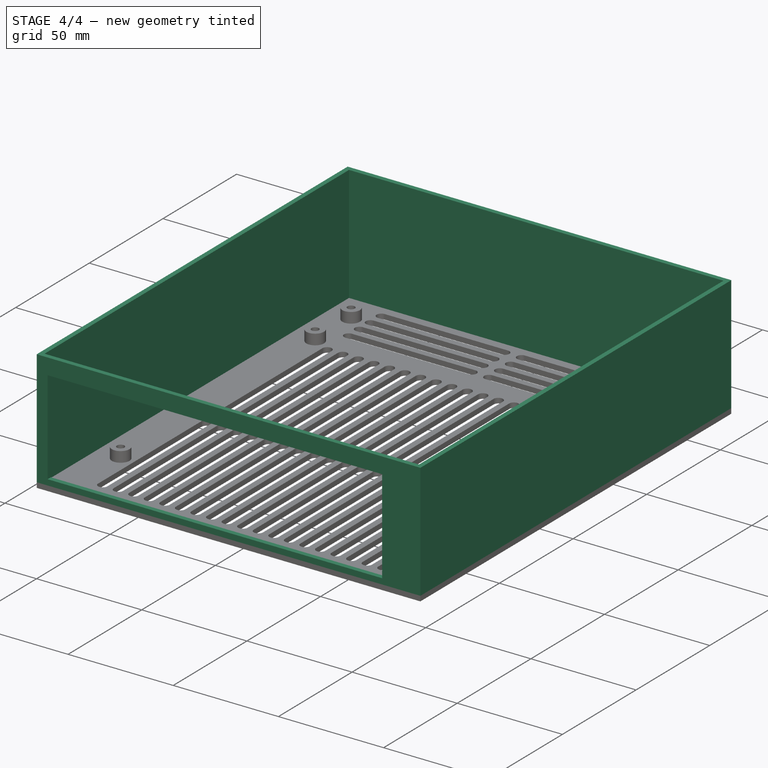
[diagram: stage 4 of 4 — iso view after this stage's code; geometry added in this stage tinted green]
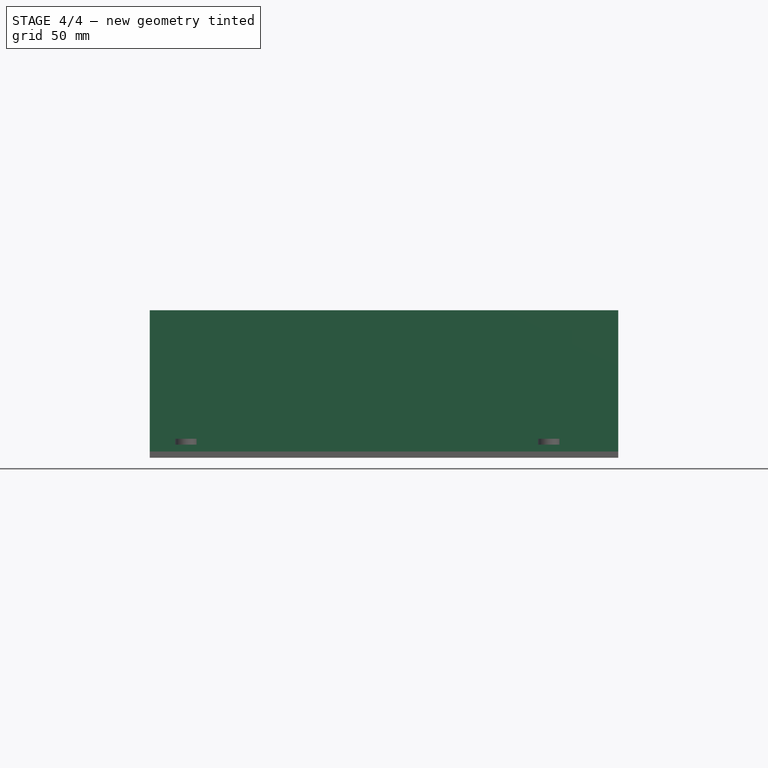
[diagram: stage 4 of 4 — front view after this stage's code; geometry added in this stage tinted green]
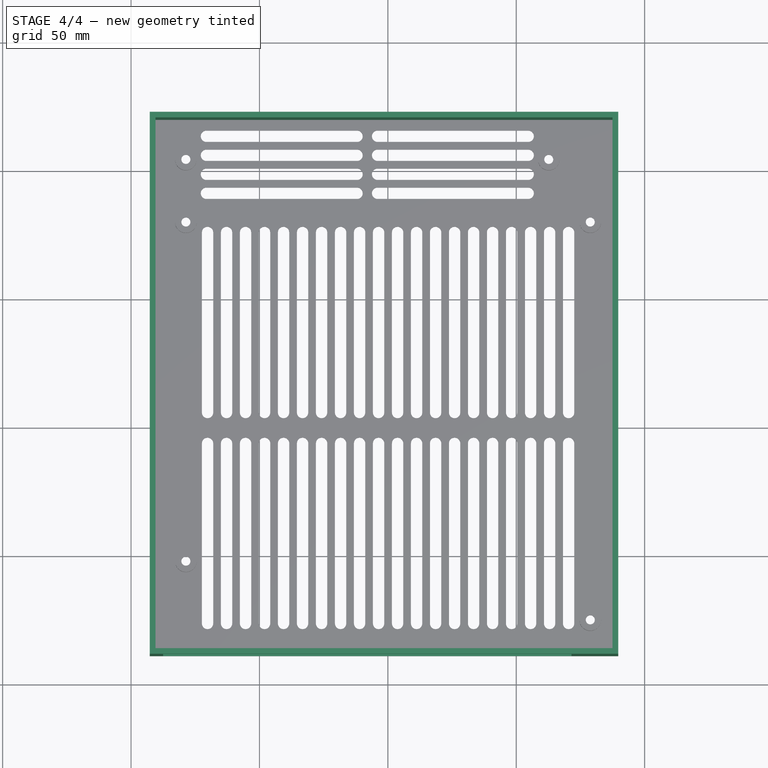
[diagram: stage 4 of 4 — top view after this stage's code; geometry added in this stage tinted green]
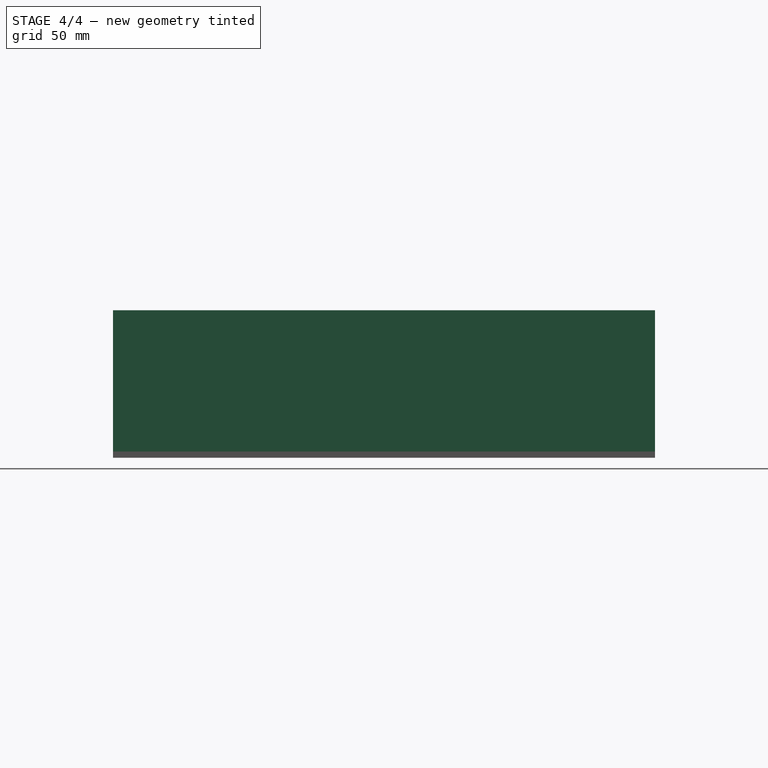
[diagram: stage 4 of 4 — right view after this stage's code; geometry added in this stage tinted green]
FEATURE [Sketcher::SketchObject] Sketch014  label="Walls"
  AttachmentOffset = pos=(0,0,2.4) rot=(0,0,1;0rad)
  ExternalGeometry = -> [Sketch]
  MapMode = 5
  Placement = pos=(0,0,2.4) rot=(0,0,1;0rad)
  Support = -> [XY_Plane001]
  expr: AttachmentOffset.Base.z = Base.Placement.Base.z + Base_.Length
  sketch-geometry (8):
    g0: LineSegment StartX=-92.7 StartY=122.2 StartZ=0 EndX=89.7 EndY=122.2 EndZ=0
    g1: LineSegment StartX=89.7 StartY=122.2 StartZ=0 EndX=89.7 EndY=-88.9 EndZ=0
    g2: LineSegment StartX=89.7 StartY=-88.9 StartZ=0 EndX=-92.7 EndY=-88.9 EndZ=0
    g3: LineSegment StartX=-92.7 StartY=-88.9 StartZ=0 EndX=-92.7 EndY=122.2 EndZ=0
    g4: LineSegment StartX=-90.5 StartY=120 StartZ=0 EndX=87.5 EndY=120 EndZ=0
    g5: LineSegment StartX=87.5 StartY=120 StartZ=0 EndX=87.5 EndY=-86.7 EndZ=0
    g6: LineSegment StartX=87.5 StartY=-86.7 StartZ=0 EndX=-90.5 EndY=-86.7 EndZ=0
    g7: LineSegment StartX=-90.5 StartY=-86.7 StartZ=0 EndX=-90.5 EndY=120 EndZ=0
  constraints (22):
    c: Coincident(g0,g1)
    c: Coincident(g1,g2)
    c: Coincident(g2,g3)
    c: Coincident(g3,g0)
    c: Horizontal(g0)
    c: Horizontal(g2)
    c: Vertical(g1)
    c: Vertical(g3)
    c: Coincident(g0,g-3)
    c: Coincident(g1,g-4)
    c: Coincident(g4,g5)
    c: Coincident(g5,g6)
    c: Coincident(g6,g7)
    c: Coincident(g7,g4)
    c: Horizontal(g4)
    c: Horizontal(g6)
    c: Vertical(g5)
    c: Vertical(g7)
    c: PointOnObject(g-7,g6)
    c: PointOnObject(g-8,g7)
    c: PointOnObject(g-5,g4)
    c: PointOnObject(g-6,g5)
FEATURE [PartDesign::Pad] Pad002  label="Walls_"
  BaseFeature = -> LinearPattern001
  Length = 55
  Length2 = 100
  Profile = -> Sketch014
  Type = 0
FEATURE [PartDesign::Pocket] Pocket003  label="BackPlate_"
  BaseFeature = -> Pad002
  Length = 5
  Length2 = 100
  Profile = -> Sketch008
  Type = 2
FEATURE [PartDesign::Body] Body
  Group = -> [Sketch,Sketch009,Pad,Sketch010,Pad001,Sketch011,Pocket,Sketch012,Pocket001,LinearPattern,Sketch013,Pocket002,LinearPattern001,Sketch014,Pad002,Sketch008,Pocket003]
  Origin = -> Origin001
  Tip = -> Pocket003
FEATURE [App::Part] Part
  Group = -> [Body]
  Origin = -> Origin
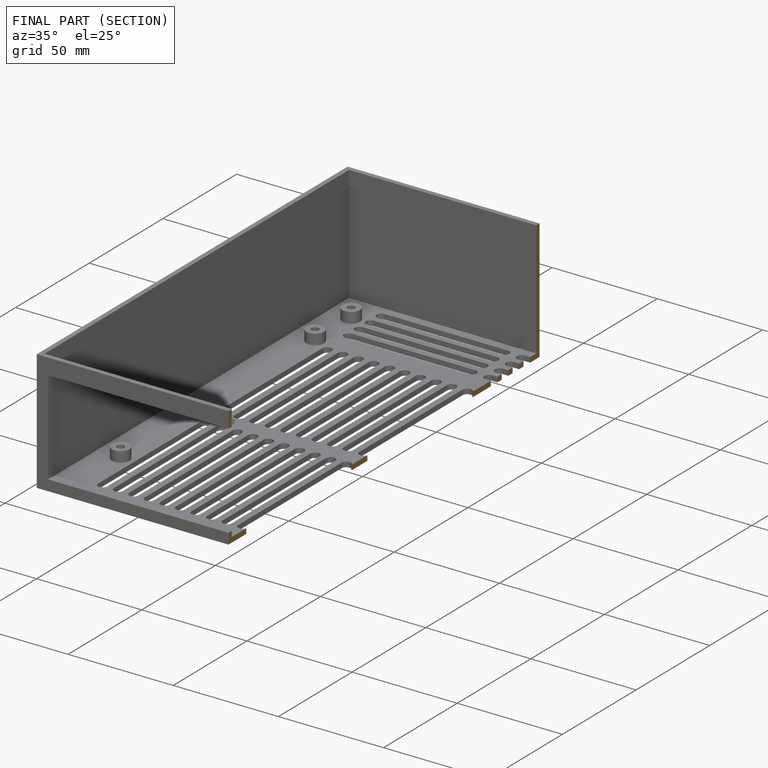
[diagram: finished part — half-section view (interior)]
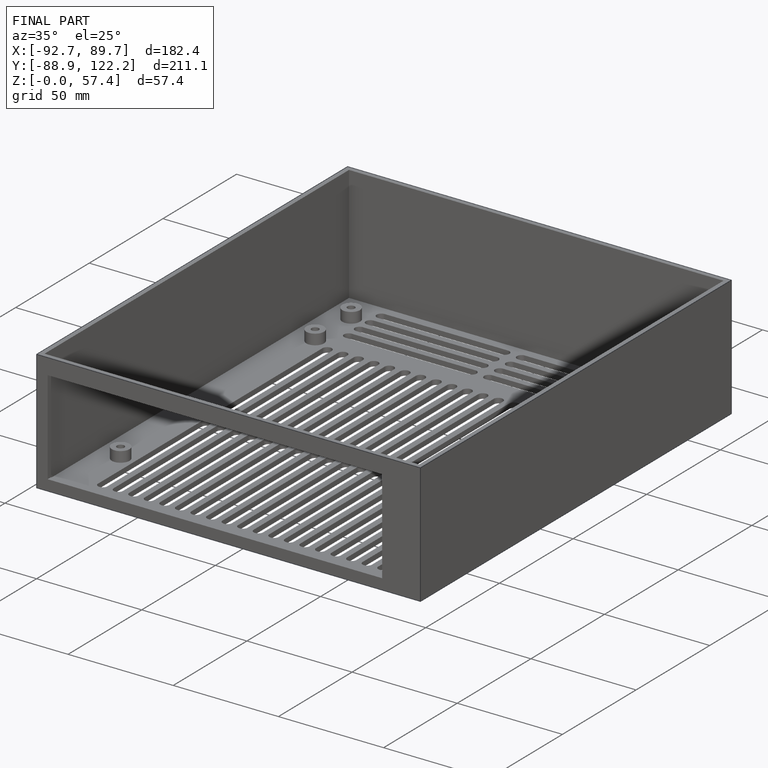
[diagram: finished part — iso view with bounding-box wireframe]
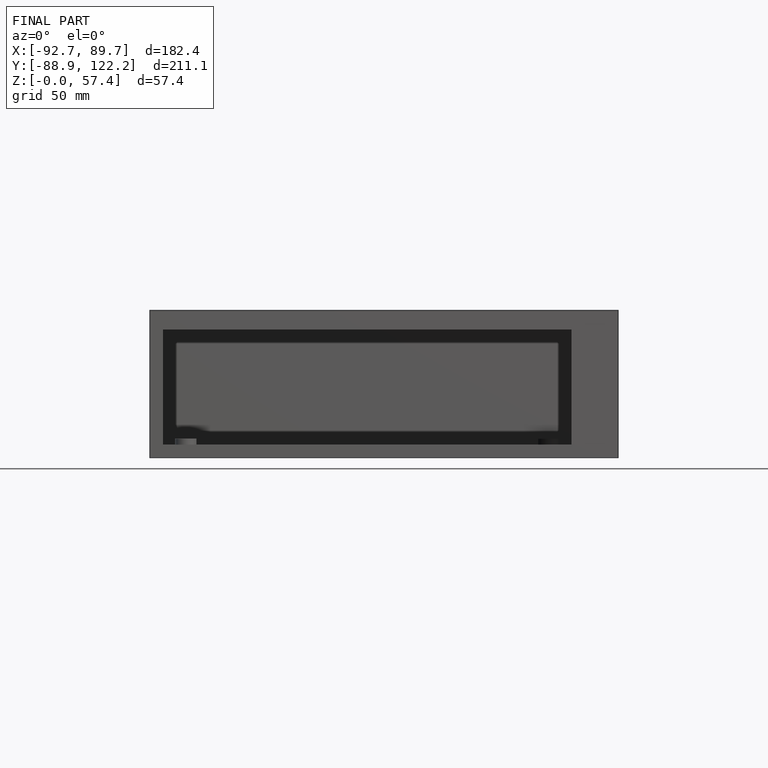
[diagram: finished part — front view with bounding-box wireframe]
